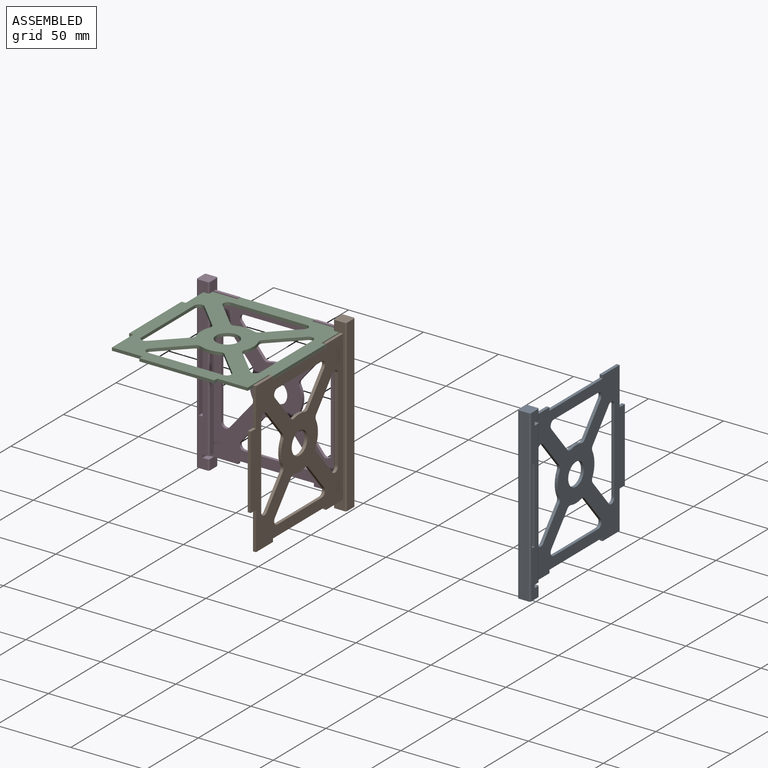
[diagram: assembled view]
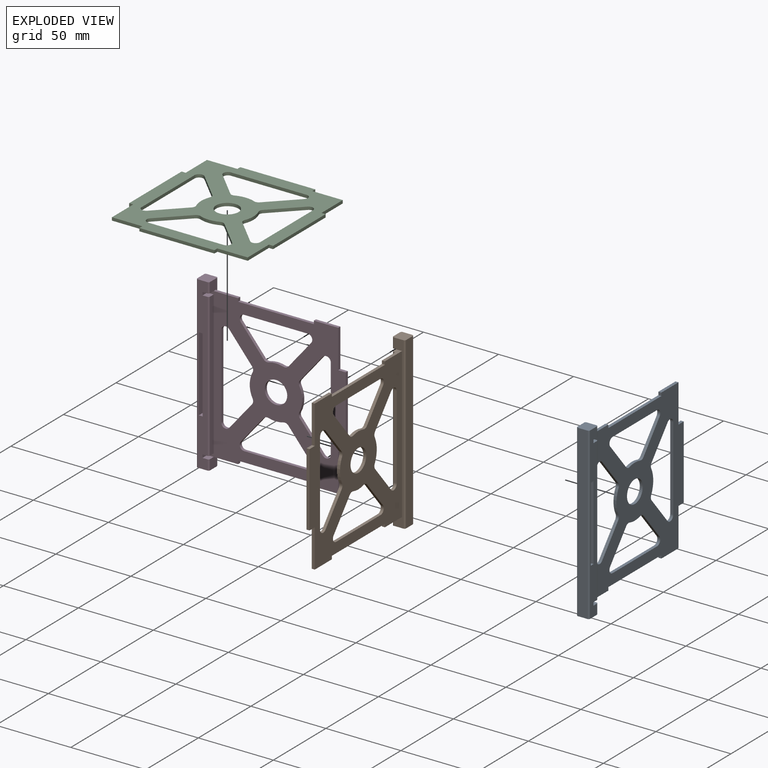
[diagram: exploded view]
GUIDED TOUR — MATED ASSEMBLY (Onshape document 52ce1bf798d8b004fdf24219, AutoMate assembly 52ce1bf798d8b004fdf24219_5a466574b3084bd23692c720_15b88dd2b210c7938735afd3_default)

This assembly has 4 components, labeled P0..P3 below (a component is one placed occurrence of a part; the same part can appear more than once), held together by 3 mates. A mate is a constraint between two components; its type names the relative motion it leaves free:
  PARALLEL — keeps the two listed directions parallel,
  PLANAR — leaves sliding in the plane through the listed point (normal = the listed direction) and rotation about that normal free.
Axis/direction vectors are unit vectors and 'through' points are millimeter coordinates, both in the assembly's world frame.

MATES
  1. PARALLEL "Parallel 1": P1 <-> P3, direction (-1.000, 0.000, 0.000) through (-115.43, -76.93, 66.08) mm
  2. PLANAR "Planar 1": P3 <-> P1, direction (0.000, 0.000, 1.000) through (-123.56, -72.35, 62.70) mm
  3. PLANAR "Planar 2": P2 <-> P1, direction (0.000, 0.000, -1.000) through (-157.02, -119.54, 60.60) mm

ASSEMBLY ORDER
  1. P3 — the base component [order verified]
  2. P1 [order verified]
  3. P2 [order verified]
  4. P0 [order verified]
Order-tag legend:
  [order verified] — this step's position reverses a verified removal order: the component was checked to insert without passing through the ones already placed.

Of the 4 components, 1 carries the full construction recipe — the FeatureScript program that regenerates the part's solid from scratch; the rest are supplied as boundary geometry only.
Each toured component is shown spotlighted twice — in the assembled view, then in the exploded view, where a leader line traces a displaced component back to its assembled socket (saturated green if recipe-attached, orange if geometry-only; every other component desaturated gray) — followed by its recipe or geometry summary and the mates that hold it.
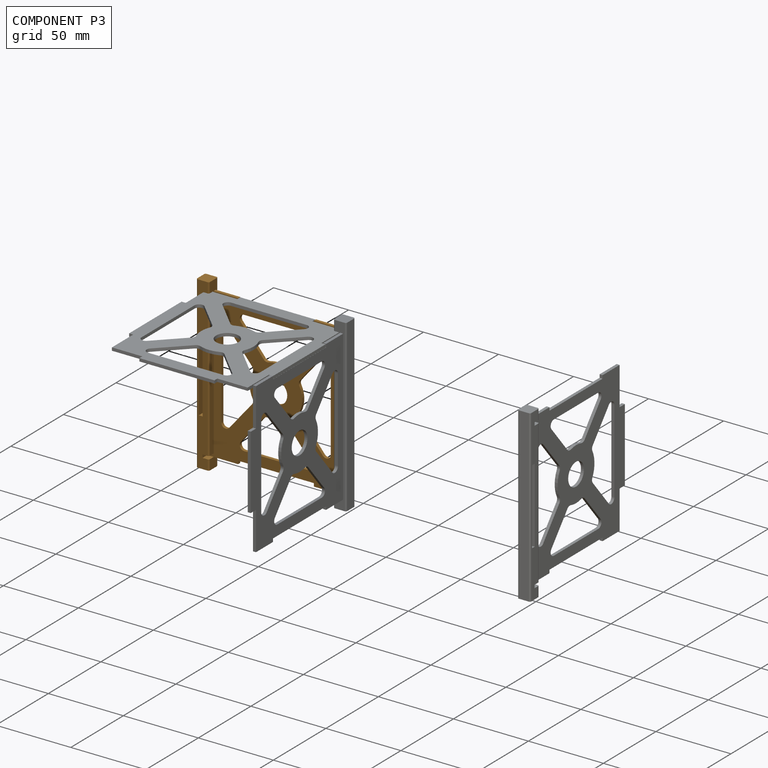
[diagram: component P3 — assembled]
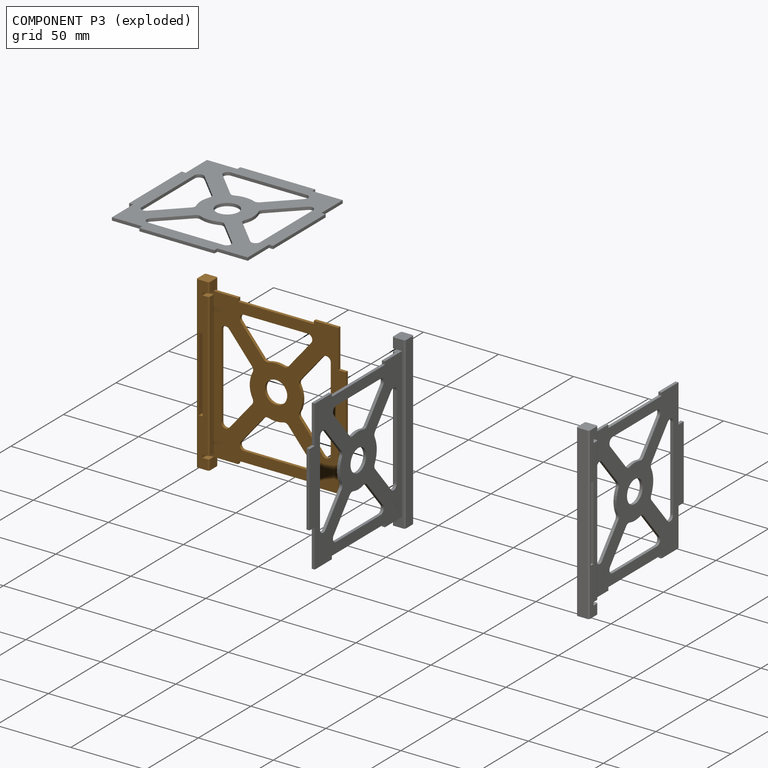
[diagram: component P3 — exploded]
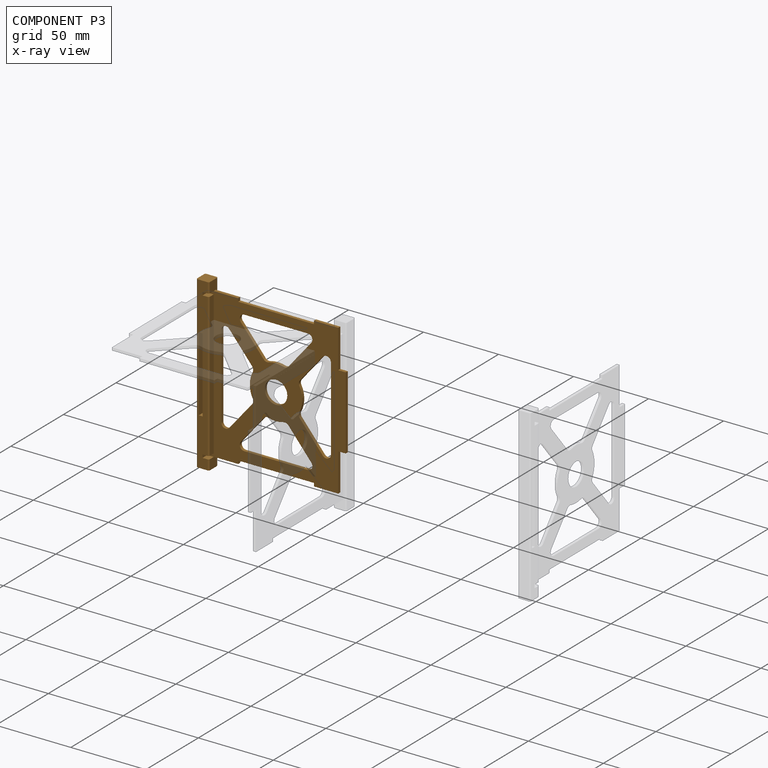
[diagram: component P3 — x-ray view]
COMPONENT P3 — geometry summary (no construction recipe available for this part):
  bounding box: 113.5 x 96.5 x 8.5 mm
  B-rep topology: 1 solid, 74 faces, 422 edges
  volume: 16624 mm^3 (18% of its bounding box)
  symmetry: mirror-symmetric across its y mid-plane
Held by: PARALLEL mate "Parallel 1" to P1; PLANAR mate "Planar 1" to P1.
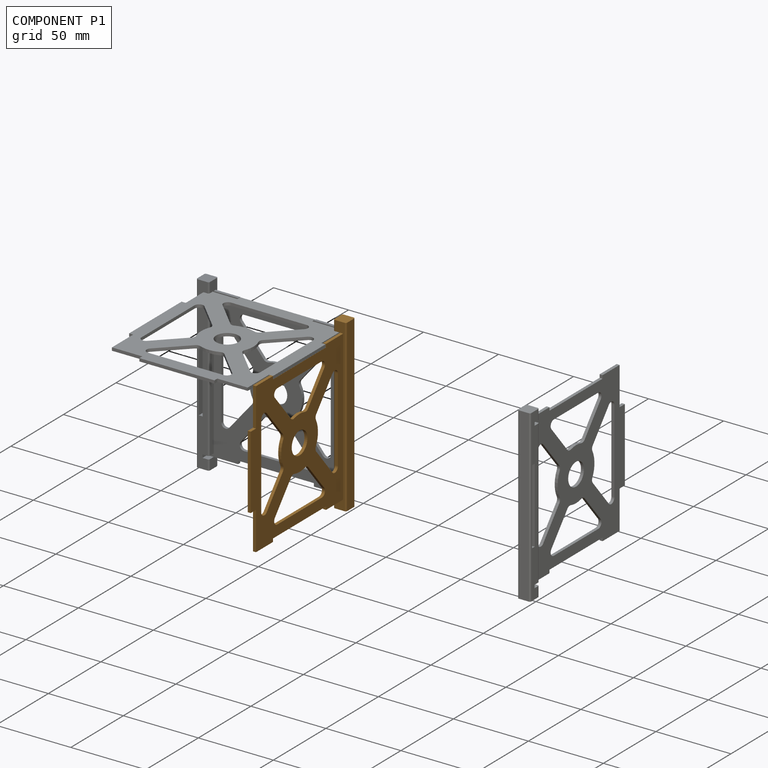
[diagram: component P1 — assembled]
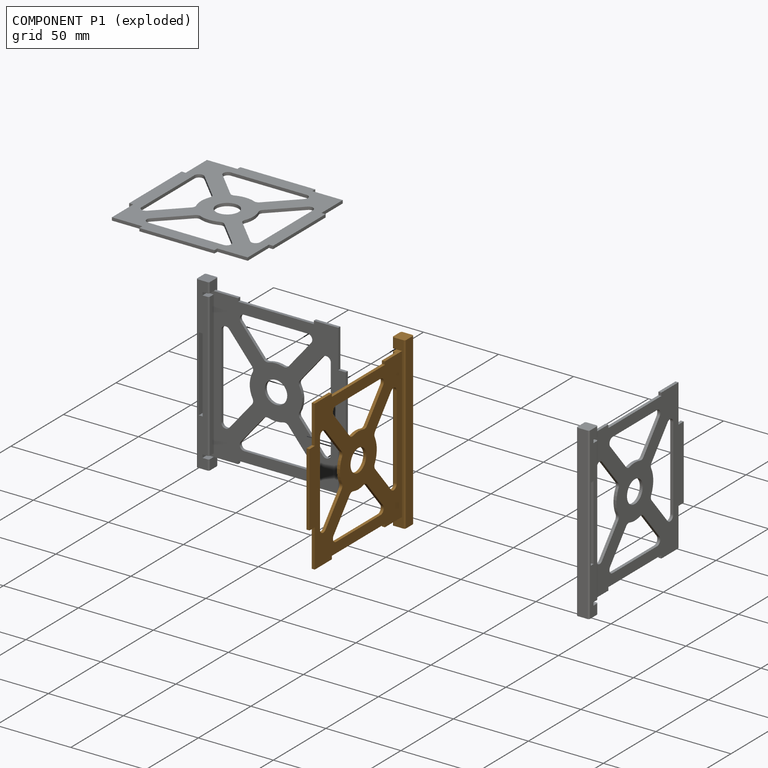
[diagram: component P1 — exploded]
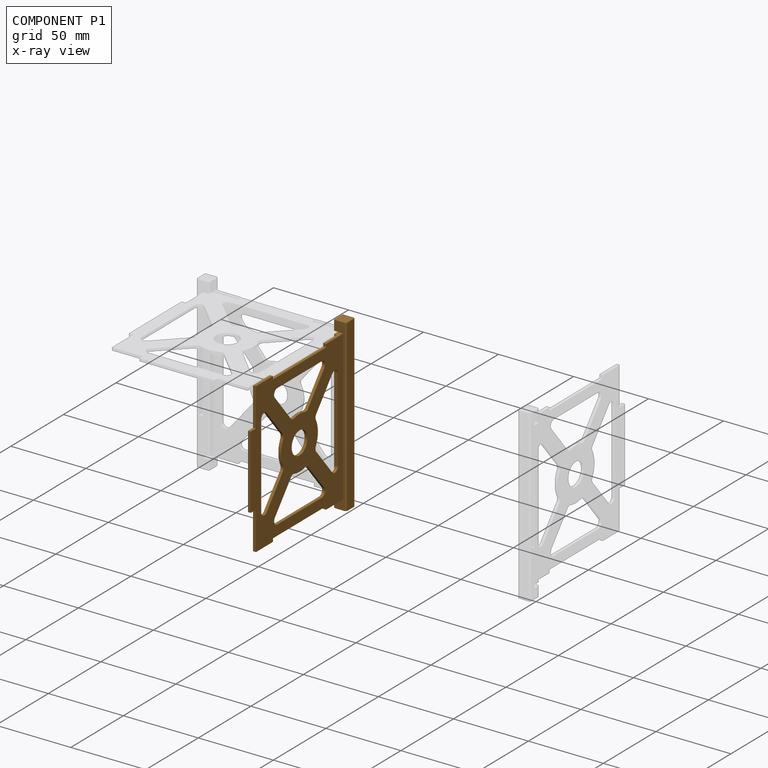
[diagram: component P1 — x-ray view]
COMPONENT P1 — geometry summary (no construction recipe available for this part):
  bounding box: 113.5 x 96.5 x 8.5 mm
  B-rep topology: 1 solid, 74 faces, 422 edges
  volume: 16624 mm^3 (18% of its bounding box)
  symmetry: mirror-symmetric across its y mid-plane
Held by: PARALLEL mate "Parallel 1" to P3; PLANAR mate "Planar 1" to P3; PLANAR mate "Planar 2" to P2.
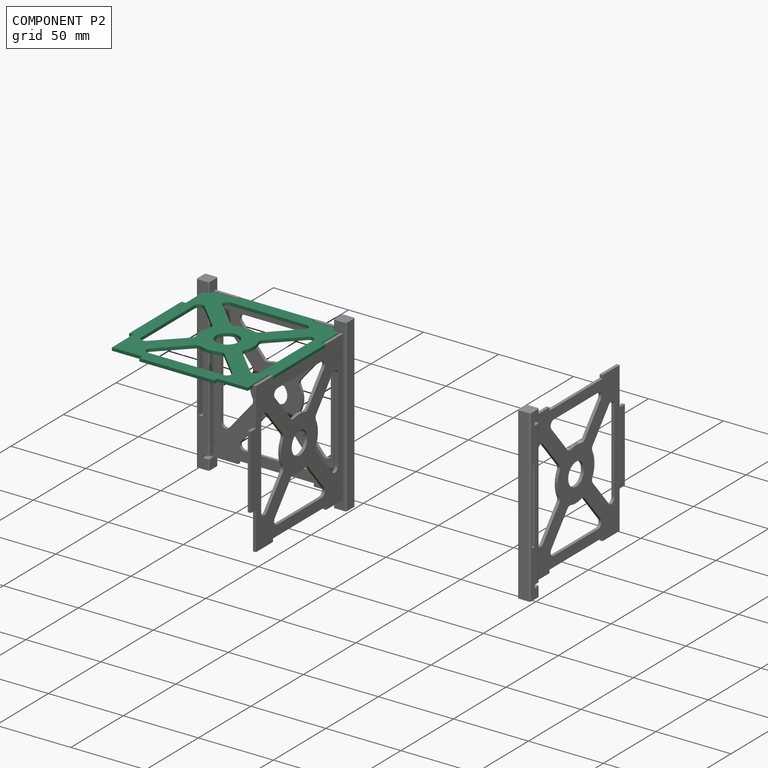
[diagram: component P2 — assembled]
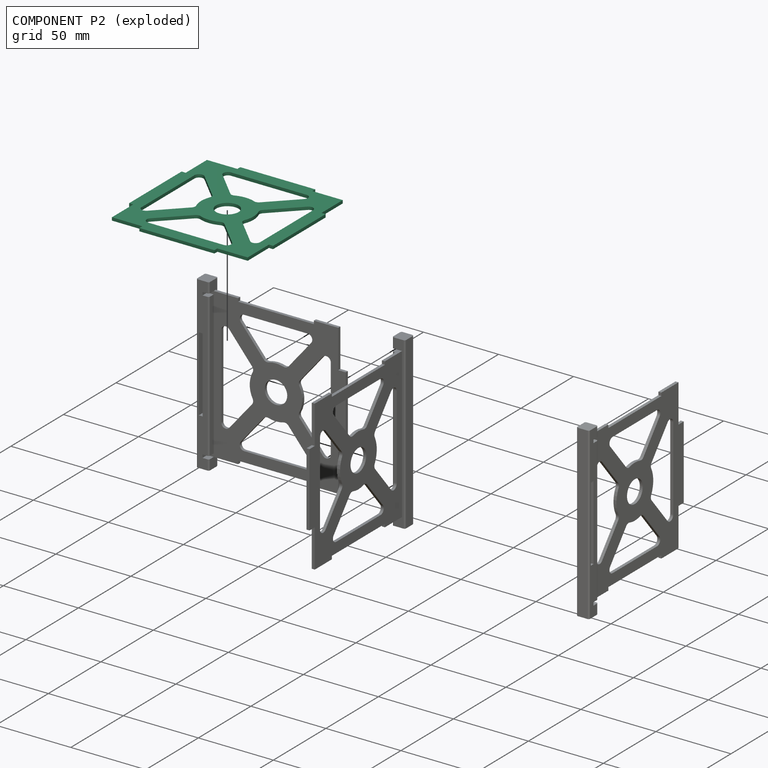
[diagram: component P2 — exploded]
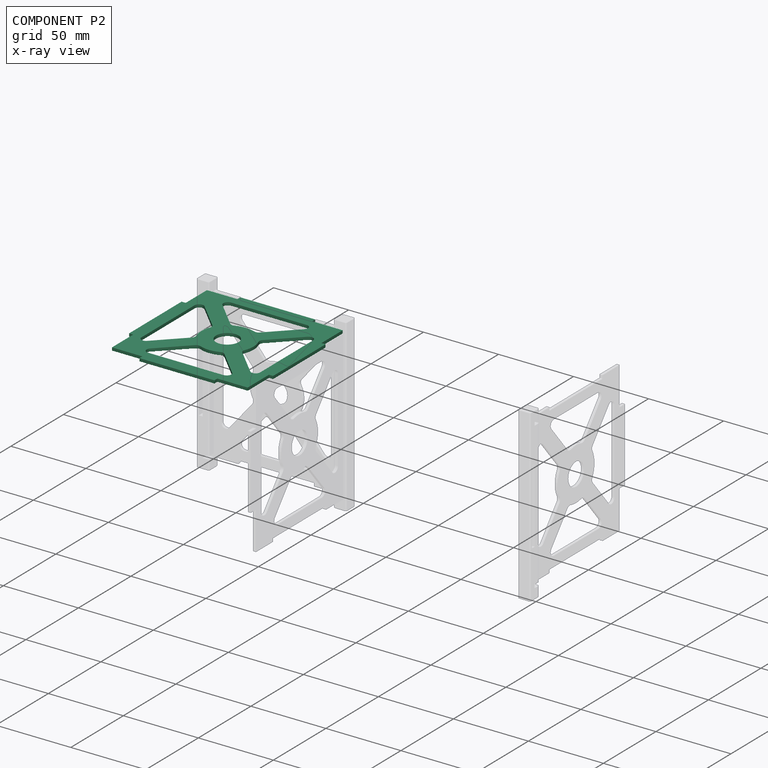
[diagram: component P2 — x-ray view]
COMPONENT P2 — recipe-attached (CADFS 00921138, mesh-verified: the recipe's output STEP matches this component's geometry to below the mesh-comparison resolution (tessellation chordal tolerance ~0.204 mm)).
Held by: PLANAR mate "Planar 2" to P1.
Construction recipe (FeatureScript — the CAD program that rebuilds this solid; sketch coordinates are in the units given by the * unit suffixes, e.g. mm):

FeatureScript 1511;
import(path : "onshape/std/geometry.fs", version : "1511.0");
import(path : "onshape/std/common.fs", version : "1511.0");
const mm = millimeter;
const VERTEX = EntityType.VERTEX;
const EDGE = EntityType.EDGE;
const FACE = EntityType.FACE;
const BODY = EntityType.BODY;
function v(x, y){return vector(x, y);}
function OD(order){return orderDisambiguation(order);}
function OSD(set){return originalSetDisambiguation(set);}
function TD(topology){return topologyDisambiguation(topology);}
function TDD(query){return trueDependencyDisambiguation(query);}
function sQuery(a, b, c) {return sketchEntityQuery(a, b, c);}

annotation { "Feature Type Name" : "Feature", "Feature Type Description" : "" }
export const myFeature = defineFeature(function(context is Context, id is Id, definition is map)
    precondition{}
    {
        {
            var Q0;
            Q0=qCreatedBy(makeId("Top.planeOp"),FACE);
            var sketch = newSketch(context, id + "F0", { "sketchPlane" : qUnion([Q0])});
            skLineSegment(sketch, "E0.bottom", {"start": v(-45.25, 45.25) * mm, "end": v(-25, 45.25) * mm, "construction": true});
            skLineSegment(sketch, "E0.top", {"start": v(-45.25, -45.25) * mm, "end": v(-25, -45.25) * mm, "construction": true});
            skLineSegment(sketch, "E0.left", {"start": v(-45.25, 45.25) * mm, "end": v(-45.25, 25) * mm, "construction": true});
            skLineSegment(sketch, "E0.right", {"start": v(45.25, 45.25) * mm, "end": v(45.25, 25) * mm, "construction": true});
            skPoint(sketch, "E0.middle", {"position": v(0, 0) * mm});
            skLineSegment(sketch, "E1.top", {"start": v(25, 48) * mm, "end": v(-25, 48) * mm});
            skLineSegment(sketch, "E1.left", {"start": v(25, 45.25) * mm, "end": v(25, 48) * mm});
            skLineSegment(sketch, "E1.right", {"start": v(-25, 45.25) * mm, "end": v(-25, 48) * mm});
            skPoint(sketch, "E1.middle", {"position": v(0, 46.63) * mm});
            skPoint(sketch, "E1.middle.positionSnap0", {"position": v(0, 45.25) * mm});
            skPoint(sketch, "E1.centerSnap0", {"position": v(0, 45.25) * mm});
            skLineSegment(sketch, "E2.bottom", {"start": v(45.25, 25) * mm, "end": v(48, 25) * mm});
            skLineSegment(sketch, "E2.top", {"start": v(45.25, -25) * mm, "end": v(48, -25) * mm});
            skLineSegment(sketch, "E2.right", {"start": v(48, 25) * mm, "end": v(48, -25) * mm});
            skPoint(sketch, "E2.middle", {"position": v(46.63, 0) * mm});
            skLineSegment(sketch, "E3", {"start": v(0, 45.25) * mm, "end": v(0, -45.25) * mm, "construction": true});
            skLineSegment(sketch, "E4", {"start": v(-45.25, 0) * mm, "end": v(46.63, 0) * mm, "construction": true});
            skLineSegment(sketch, "E5.MirrorCS", {"start": v(-45.25, 25) * mm, "end": v(-48, 25) * mm});
            skLineSegment(sketch, "E6.MirrorCS", {"start": v(-45.25, -25) * mm, "end": v(-48, -25) * mm});
            skLineSegment(sketch, "E7.MirrorCS", {"start": v(-48, 25) * mm, "end": v(-48, -25) * mm});
            skPoint(sketch, "E8.MirrorP", {"position": v(-46.62, 0) * mm});
            skLineSegment(sketch, "E9.MirrorCS", {"start": v(-25, -45.25) * mm, "end": v(-25, -48) * mm});
            skLineSegment(sketch, "E10.MirrorCS", {"start": v(25, -45.25) * mm, "end": v(25, -48) * mm});
            skPoint(sketch, "E11.MirrorP", {"position": v(0, -45.25) * mm});
            skPoint(sketch, "E12.MirrorP", {"position": v(0, -46.63) * mm});
            skLineSegment(sketch, "E13.MirrorCS", {"start": v(25, -48) * mm, "end": v(-25, -48) * mm});
            skLineSegment(sketch, "E14.trimOffspring", {"start": v(-45.25, -25) * mm, "end": v(-45.25, -45.25) * mm, "construction": true});
            skLineSegment(sketch, "E15.trimOffspring", {"start": v(45.25, -25) * mm, "end": v(45.25, -45.25) * mm, "construction": true});
            skLineSegment(sketch, "E16.trimOffspring", {"start": v(25, -45.25) * mm, "end": v(45.25, -45.25) * mm, "construction": true});
            skLineSegment(sketch, "E17.trimOffspring", {"start": v(25, 45.25) * mm, "end": v(45.25, 45.25) * mm, "construction": true});
            skLineSegment(sketch, "E18", {"start": v(-25, 45.25) * mm, "end": v(-45.25, 45.25) * mm});
            skLineSegment(sketch, "E19", {"start": v(-45.25, 25) * mm, "end": v(-45.25, 45.25) * mm});
            skLineSegment(sketch, "E20", {"start": v(-45.25, -25) * mm, "end": v(-45.25, -45.25) * mm});
            skLineSegment(sketch, "E21", {"start": v(-45.25, -45.25) * mm, "end": v(-25, -45.25) * mm});
            skLineSegment(sketch, "E22", {"start": v(25, -45.25) * mm, "end": v(45.25, -45.25) * mm});
            skLineSegment(sketch, "E23", {"start": v(45.25, -25) * mm, "end": v(45.25, -45.25) * mm});
            skLineSegment(sketch, "E24", {"start": v(45.25, 45.25) * mm, "end": v(45.25, 25) * mm});
            skLineSegment(sketch, "E25", {"start": v(25, 45.25) * mm, "end": v(45.25, 45.25) * mm});
            skSolve(sketch);
        }
        {
            var Q0;
            Q0=makeQuery(id+"F0.imprint","IMPRINT",FACE,{"disambiguationData":[TD([[makeQuery(id+"F0.imprint","IMPRINT",EDGE,{"derivedFrom":sQuery(id+"F0.wireOp",EDGE,"E1.top")}),1.0]])]});
            extrude(context, id + "F1", {"entities" : qUnion([Q0]), "depth" : 2 * mm});
        }
        {
            var Q0;
            Q0=makeQuery(id+"F1.opExtrude","CAP_FACE",FACE,{"disambiguationData":[OSD([sQuery(id+"F0.wireOp",EDGE,"E1.top"),sQuery(id+"F0.wireOp",EDGE,"E1.left"),sQuery(id+"F0.wireOp",EDGE,"E1.right"),sQuery(id+"F0.wireOp",EDGE,"E2.bottom"),sQuery(id+"F0.wireOp",EDGE,"E2.top"),sQuery(id+"F0.wireOp",EDGE,"E2.right"),sQuery(id+"F0.wireOp",EDGE,"E5.MirrorCS"),sQuery(id+"F0.wireOp",EDGE,"E6.MirrorCS"),sQuery(id+"F0.wireOp",EDGE,"E7.MirrorCS"),sQuery(id+"F0.wireOp",EDGE,"E9.MirrorCS"),sQuery(id+"F0.wireOp",EDGE,"E10.MirrorCS"),sQuery(id+"F0.wireOp",EDGE,"E13.MirrorCS"),sQuery(id+"F0.wireOp",EDGE,"E18"),sQuery(id+"F0.wireOp",EDGE,"E19"),sQuery(id+"F0.wireOp",EDGE,"E20"),sQuery(id+"F0.wireOp",EDGE,"E21"),sQuery(id+"F0.wireOp",EDGE,"E22"),sQuery(id+"F0.wireOp",EDGE,"E23"),sQuery(id+"F0.wireOp",EDGE,"E24"),sQuery(id+"F0.wireOp",EDGE,"E25")])],"isStart":false});
            var sketch = newSketch(context, id + "F2", { "sketchPlane" : qUnion([Q0])});
            skCircle(sketch, "E26", {"center": v(0, 0) * mm, "radius": 7.5 * mm});
            skArc(sketch, "E27", {"start": v(-15.4, 8.32) * mm, "mid": v(-17.5, 0) * mm, "end": v(-15.4, -8.32) * mm});
            skLineSegment(sketch, "E28", {"start": v(0, 0) * mm, "end": v(-45.25, 45.25) * mm, "construction": true});
            skLineSegment(sketch, "E29", {"start": v(0, 0) * mm, "end": v(45.25, 45.25) * mm, "construction": true});
            skLineSegment(sketch, "E30", {"start": v(0, 0) * mm, "end": v(-45.25, -45.25) * mm, "construction": true});
            skLineSegment(sketch, "E31", {"start": v(0, 0) * mm, "end": v(45.25, -45.25) * mm, "construction": true});
            skLineSegment(sketch, "E32", {"start": v(-8.32, 15.4) * mm, "end": v(-32.43, 39.5) * mm});
            skLineSegment(sketch, "E33", {"start": v(-32.43, 39.5) * mm, "end": v(32.43, 39.5) * mm});
            skLineSegment(sketch, "E34", {"start": v(32.43, 39.5) * mm, "end": v(8.32, 15.4) * mm});
            skLineSegment(sketch, "E35", {"start": v(-15.4, 8.32) * mm, "end": v(-39.5, 32.43) * mm});
            skLineSegment(sketch, "E36", {"start": v(-39.5, 32.43) * mm, "end": v(-39.5, -32.43) * mm});
            skLineSegment(sketch, "E37", {"start": v(-39.5, -32.43) * mm, "end": v(-15.4, -8.32) * mm});
            skLineSegment(sketch, "E38", {"start": v(0, 0) * mm, "end": v(0, -48) * mm, "construction": true});
            skLineSegment(sketch, "E39", {"start": v(0, 0) * mm, "end": v(48, 0) * mm, "construction": true});
            skLineSegment(sketch, "E40.MirrorCS", {"start": v(32.43, -39.5) * mm, "end": v(8.32, -15.4) * mm});
            skLineSegment(sketch, "E41.MirrorCS", {"start": v(-32.43, -39.5) * mm, "end": v(32.43, -39.5) * mm});
            skLineSegment(sketch, "E42.MirrorCS", {"start": v(-8.32, -15.4) * mm, "end": v(-32.43, -39.5) * mm});
            skLineSegment(sketch, "E43.MirrorCS", {"start": v(-15.4, -8.32) * mm, "end": v(-39.5, -32.43) * mm});
            skLineSegment(sketch, "E44.MirrorCS", {"start": v(-39.5, -32.43) * mm, "end": v(-39.5, 32.43) * mm});
            skLineSegment(sketch, "E45.MirrorCS", {"start": v(15.4, -8.32) * mm, "end": v(39.5, -32.43) * mm});
            skLineSegment(sketch, "E46.MirrorCS", {"start": v(15.4, 8.32) * mm, "end": v(39.5, 32.43) * mm});
            skLineSegment(sketch, "E47.MirrorCS", {"start": v(39.5, 32.43) * mm, "end": v(39.5, -32.43) * mm});
            skArc(sketch, "E48.trimOffspring", {"start": v(8.32, 15.4) * mm, "mid": v(0, 17.5) * mm, "end": v(-8.32, 15.4) * mm});
            skArc(sketch, "E49.trimOffspring", {"start": v(15.4, -8.32) * mm, "mid": v(17.5, 0) * mm, "end": v(15.4, 8.32) * mm});
            skArc(sketch, "E50.trimOffspring", {"start": v(-8.32, -15.4) * mm, "mid": v(0, -17.5) * mm, "end": v(8.32, -15.4) * mm});
            skSolve(sketch);
        }
        {
            var Q0;
            Q0=makeQuery(id+"F2.imprint","IMPRINT",FACE,{"disambiguationData":[TD([[makeQuery(id+"F2.imprint","IMPRINT",EDGE,{"derivedFrom":sQuery(id+"F2.wireOp",EDGE,"E27")}),-1.0]])]});
            var Q1;
            Q1=makeQuery(id+"F2.imprint","IMPRINT",FACE,{"disambiguationData":[TD([[makeQuery(id+"F2.imprint","IMPRINT",EDGE,{"derivedFrom":sQuery(id+"F2.wireOp",EDGE,"E32")}),-1.0]])]});
            var Q2;
            Q2=makeQuery(id+"F2.imprint","IMPRINT",FACE,{"disambiguationData":[TD([[makeQuery(id+"F2.imprint","IMPRINT",EDGE,{"derivedFrom":sQuery(id+"F2.wireOp",EDGE,"E26")}),1.0]])]});
            var Q3;
            Q3=makeQuery(id+"F2.imprint","IMPRINT",FACE,{"disambiguationData":[TD([[makeQuery(id+"F2.imprint","IMPRINT",EDGE,{"derivedFrom":sQuery(id+"F2.wireOp",EDGE,"E45.MirrorCS")}),1.0]])]});
            var Q4;
            Q4=makeQuery(id+"F2.imprint","IMPRINT",FACE,{"disambiguationData":[TD([[makeQuery(id+"F2.imprint","IMPRINT",EDGE,{"derivedFrom":sQuery(id+"F2.wireOp",EDGE,"E40.MirrorCS")}),1.0]])]});
            extrude(context, id + "F3", {"entities" : qUnion([Q0, Q1, Q2, Q3, Q4]), "operationType" : NewBodyOperationType.REMOVE, "oppositeDirection" : true, "depth" : 25 * mm});
        }
        {
            var Q0;
            Q0=makeQuery(id+"F3.boolean.opBoolean","COPY",EDGE,{"derivedFrom":makeQuery(id+"F3.opExtrude","SWEPT_EDGE",EDGE,{"disambiguationData":[OSD([sQuery(id+"F2.wireOp",EDGE,"E35"),sQuery(id+"F2.wireOp",EDGE,"E36")])]})});
            var Q1;
            Q1=makeQuery(id+"F3.boolean.opBoolean","COPY",EDGE,{"derivedFrom":makeQuery(id+"F3.opExtrude","SWEPT_EDGE",EDGE,{"disambiguationData":[OSD([sQuery(id+"F2.wireOp",EDGE,"E27"),sQuery(id+"F2.wireOp",EDGE,"E43.MirrorCS")])]})});
            var Q2;
            Q2=makeQuery(id+"F3.boolean.opBoolean","COPY",EDGE,{"derivedFrom":makeQuery(id+"F3.opExtrude","SWEPT_EDGE",EDGE,{"disambiguationData":[OSD([sQuery(id+"F2.wireOp",EDGE,"E27"),sQuery(id+"F2.wireOp",EDGE,"E35")])]})});
            var Q3;
            Q3=makeQuery(id+"F3.boolean.opBoolean","COPY",EDGE,{"derivedFrom":makeQuery(id+"F3.opExtrude","SWEPT_EDGE",EDGE,{"disambiguationData":[OSD([sQuery(id+"F2.wireOp",EDGE,"E34"),sQuery(id+"F2.wireOp",EDGE,"E48.trimOffspring")])]})});
            var Q4;
            Q4=makeQuery(id+"F3.boolean.opBoolean","COPY",EDGE,{"derivedFrom":makeQuery(id+"F3.opExtrude","SWEPT_EDGE",EDGE,{"disambiguationData":[OSD([sQuery(id+"F2.wireOp",EDGE,"E32"),sQuery(id+"F2.wireOp",EDGE,"E48.trimOffspring")])]})});
            var Q5;
            Q5=makeQuery(id+"F3.boolean.opBoolean","COPY",EDGE,{"derivedFrom":makeQuery(id+"F3.opExtrude","SWEPT_EDGE",EDGE,{"disambiguationData":[OSD([sQuery(id+"F2.wireOp",EDGE,"E41.MirrorCS"),sQuery(id+"F2.wireOp",EDGE,"E42.MirrorCS")])]})});
            var Q6;
            Q6=makeQuery(id+"F3.boolean.opBoolean","COPY",EDGE,{"derivedFrom":makeQuery(id+"F3.opExtrude","SWEPT_EDGE",EDGE,{"disambiguationData":[OSD([sQuery(id+"F2.wireOp",EDGE,"E45.MirrorCS"),sQuery(id+"F2.wireOp",EDGE,"E49.trimOffspring")])]})});
            var Q7;
            Q7=makeQuery(id+"F3.boolean.opBoolean","COPY",EDGE,{"derivedFrom":makeQuery(id+"F3.opExtrude","SWEPT_EDGE",EDGE,{"disambiguationData":[OSD([sQuery(id+"F2.wireOp",EDGE,"E46.MirrorCS"),sQuery(id+"F2.wireOp",EDGE,"E49.trimOffspring")])]})});
            var Q8;
            Q8=makeQuery(id+"F3.boolean.opBoolean","COPY",EDGE,{"derivedFrom":makeQuery(id+"F3.opExtrude","SWEPT_EDGE",EDGE,{"disambiguationData":[OSD([sQuery(id+"F2.wireOp",EDGE,"E45.MirrorCS"),sQuery(id+"F2.wireOp",EDGE,"E47.MirrorCS")])]})});
            var Q9;
            Q9=makeQuery(id+"F3.boolean.opBoolean","COPY",EDGE,{"derivedFrom":makeQuery(id+"F3.opExtrude","SWEPT_EDGE",EDGE,{"disambiguationData":[OSD([sQuery(id+"F2.wireOp",EDGE,"E46.MirrorCS"),sQuery(id+"F2.wireOp",EDGE,"E47.MirrorCS")])]})});
            var Q10;
            Q10=makeQuery(id+"F3.boolean.opBoolean","COPY",EDGE,{"derivedFrom":makeQuery(id+"F3.opExtrude","SWEPT_EDGE",EDGE,{"disambiguationData":[OSD([sQuery(id+"F2.wireOp",EDGE,"E33"),sQuery(id+"F2.wireOp",EDGE,"E34")])]})});
            var Q11;
            Q11=makeQuery(id+"F3.boolean.opBoolean","COPY",EDGE,{"derivedFrom":makeQuery(id+"F3.opExtrude","SWEPT_EDGE",EDGE,{"disambiguationData":[OSD([sQuery(id+"F2.wireOp",EDGE,"E40.MirrorCS"),sQuery(id+"F2.wireOp",EDGE,"E41.MirrorCS")])]})});
            var Q12;
            Q12=makeQuery(id+"F3.boolean.opBoolean","COPY",EDGE,{"derivedFrom":makeQuery(id+"F3.opExtrude","SWEPT_EDGE",EDGE,{"disambiguationData":[OSD([sQuery(id+"F2.wireOp",EDGE,"E36"),sQuery(id+"F2.wireOp",EDGE,"E43.MirrorCS")])]})});
            var Q13;
            Q13=makeQuery(id+"F3.boolean.opBoolean","COPY",EDGE,{"derivedFrom":makeQuery(id+"F3.opExtrude","SWEPT_EDGE",EDGE,{"disambiguationData":[OSD([sQuery(id+"F2.wireOp",EDGE,"E32"),sQuery(id+"F2.wireOp",EDGE,"E33")])]})});
            var Q14;
            Q14=makeQuery(id+"F3.boolean.opBoolean","COPY",EDGE,{"derivedFrom":makeQuery(id+"F3.opExtrude","SWEPT_EDGE",EDGE,{"disambiguationData":[OSD([sQuery(id+"F2.wireOp",EDGE,"E42.MirrorCS"),sQuery(id+"F2.wireOp",EDGE,"E50.trimOffspring")])]})});
            var Q15;
            Q15=makeQuery(id+"F3.boolean.opBoolean","COPY",EDGE,{"derivedFrom":makeQuery(id+"F3.opExtrude","SWEPT_EDGE",EDGE,{"disambiguationData":[OSD([sQuery(id+"F2.wireOp",EDGE,"E40.MirrorCS"),sQuery(id+"F2.wireOp",EDGE,"E50.trimOffspring")])]})});
            fillet(context, id + "F4", {"entities" : qUnion([Q0, Q1, Q2, Q3, Q4, Q5, Q6, Q7, Q8, Q9, Q10, Q11, Q12, Q13, Q14, Q15]), "radius" : 3 * mm, "tangentPropagation" : true, "allowEdgeOverflow" : false});
        }
    });
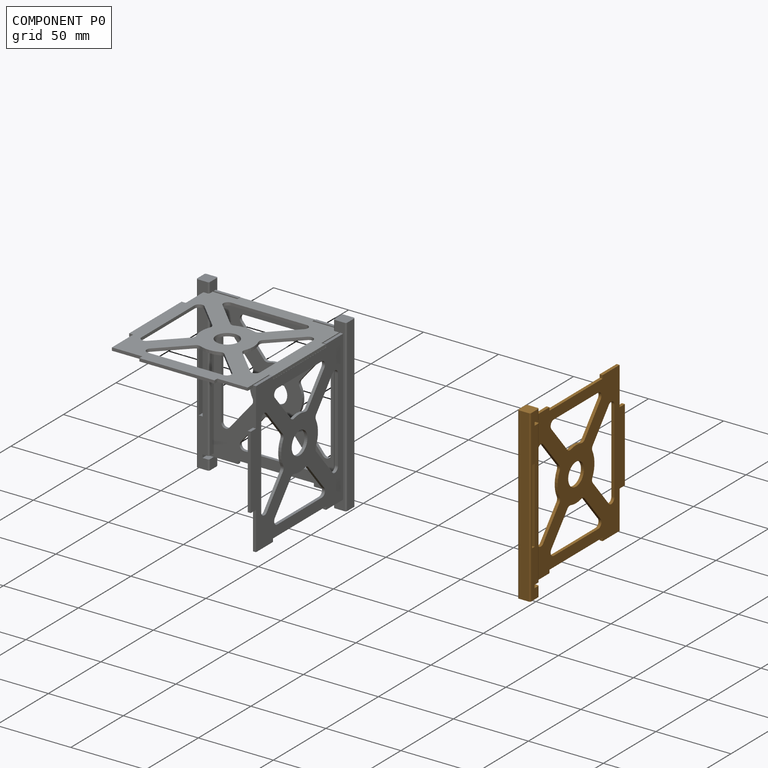
[diagram: component P0 — assembled]
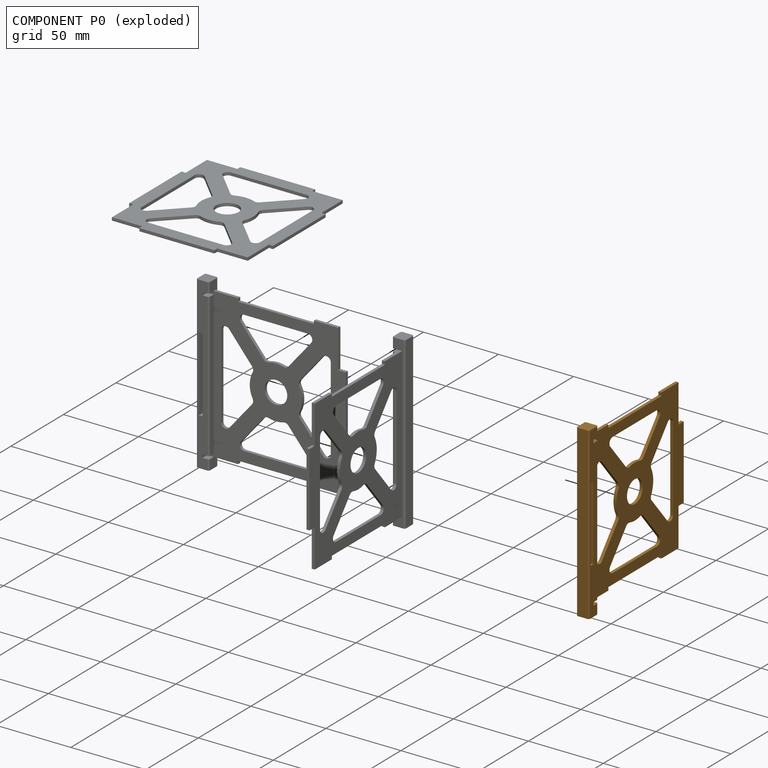
[diagram: component P0 — exploded]
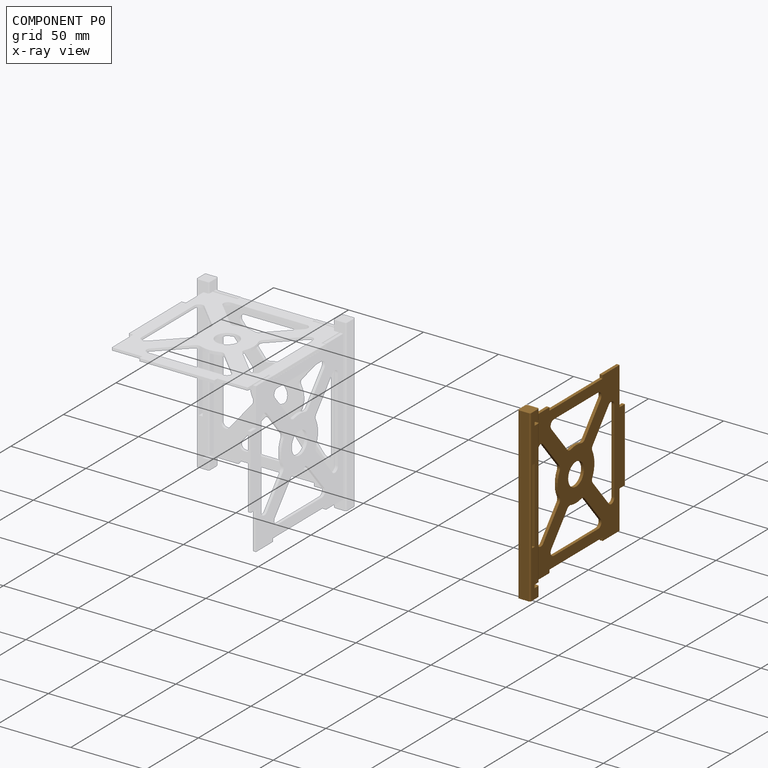
[diagram: component P0 — x-ray view]
COMPONENT P0 — geometry summary (no construction recipe available for this part):
  bounding box: 113.5 x 96.5 x 8.5 mm
  B-rep topology: 1 solid, 74 faces, 422 edges
  volume: 16624 mm^3 (18% of its bounding box)
  symmetry: mirror-symmetric across its y mid-plane
Held by: no mates (free).
PROVENANCE & LICENSES
Assembly (occurrences, transforms, mates, per-part STEP geometry): AutoMate dataset, Zenodo record 7776208, CC0.
Construction recipes: CADFS (HuggingFace VladPyatov/CADFS, CC-BY-4.0, layered over the ABC dataset), FeatureScript reconstruction programs keyed by ABC model id.
Join: ABC meta listings map ABC model id -> Onshape documentId; within a shared document, parts are matched by geometric signature (bounding-box dims + volume at 0.1% relative tolerance, exact B-rep face/solid counts).
Verification: 1 of this assembly's 4 components carries a recipe attachment, and every attachment is mesh-verified: the CADFS STEP and the AutoMate member STEP were compared as meshes in their shared local frame (symmetric sampled-point-to-mesh distance); worst across the 1 attachment: below the mesh-comparison resolution (tessellation chordal tolerance ~0.204 mm) on a 136 mm part.
Renders: orthographic iso camera (az 35 / el 25); the floor grid conveys scale (grid pitch printed in each image; no ruler). In the exploded view each component is displaced by its stored offset vector: the offsets alone carry the explosion direction (mate normal/axis signs are not orientation cues and do not encode it), and separation distances are assigned per mate-chain, not proportionally to assembly-order depth.
